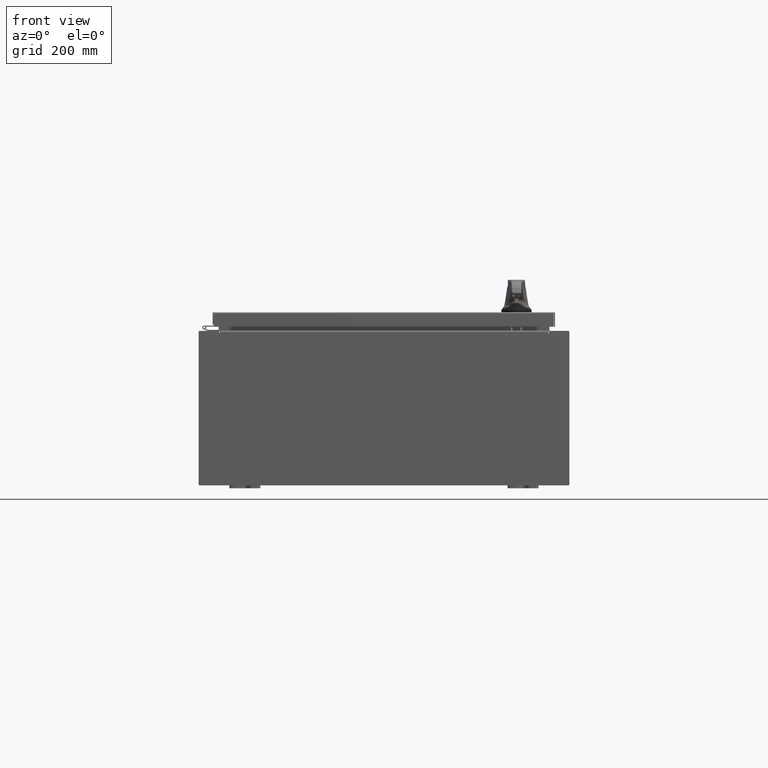
[diagram: clean part render]
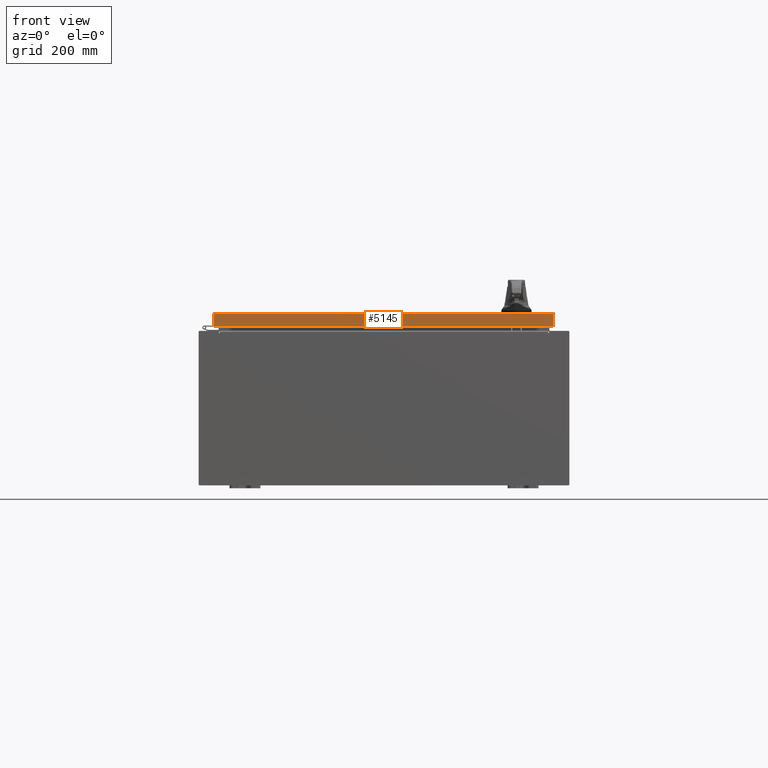
[diagram: same view with one face highlighted and labeled with its STEP entity id]
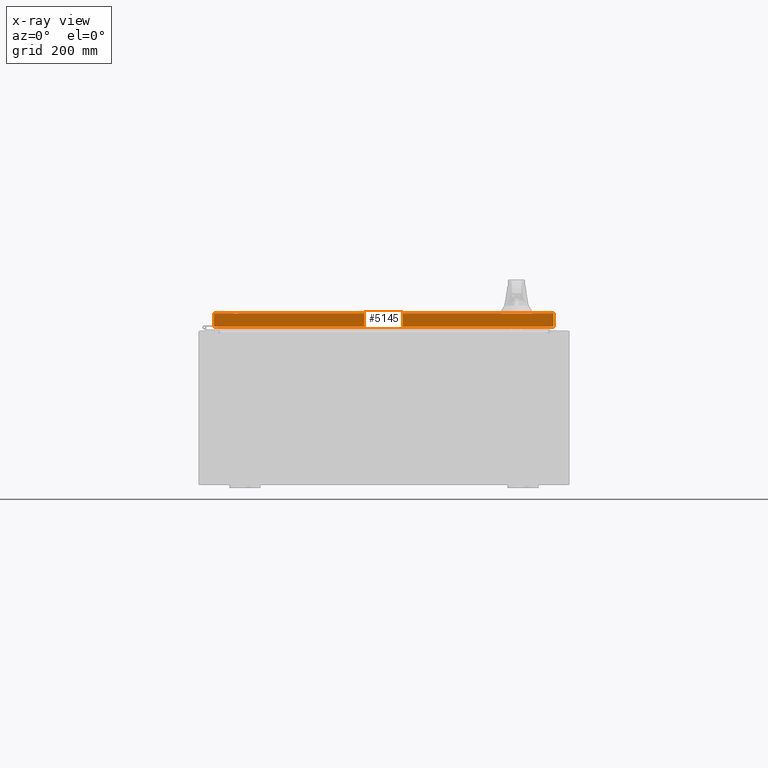
[diagram: x-ray of the same camera — body ghosted, the highlighted face saturated]
A machine part, front view. The second image highlights one B-rep face of the part: STEP entity #5145.
The next image is the same camera in x-ray: the body ghosted, the highlighted face saturated — about 0% of this face is hidden behind the body in this view.
In plain terms, the highlighted planar face has unit normal (-0, 1, -0).
Its self-contained STEP definition (entity closure, byte-faithful):
#308 = VERTEX_POINT ( 'NONE', #77193 ) ;
#3468 = CARTESIAN_POINT ( 'NONE',  ( -10.98915786437626900, -17.09399999999999800, 4.354999984715587200E-014 ) ) ;
#5145 = ADVANCED_FACE ( 'NONE', ( #108305 ), #26612, .F. ) ;
#13027 = DIRECTION ( 'NONE',  ( -3.122488847327593000E-031, 1.000000000000000000, -2.532419924601866100E-015 ) ) ;
#14921 = LINE ( 'NONE', #3468, #87943 ) ;
#16274 = LINE ( 'NONE', #116541, #117536 ) ;
#22689 = EDGE_LOOP ( 'NONE', ( #24752, #67475, #84300, #62879 ) ) ;
#24595 = VERTEX_POINT ( 'NONE', #38468 ) ;
#24752 = ORIENTED_EDGE ( 'NONE', *, *, #43842, .F. ) ;
#26612 = PLANE ( 'NONE',  #72526 ) ;
#27353 = LINE ( 'NONE', #61361, #72937 ) ;
#35202 = VERTEX_POINT ( 'NONE', #79389 ) ;
#38468 = CARTESIAN_POINT ( 'NONE',  ( -10.98915786437627200, -17.09399999999999800, -0.9376999999999970900 ) ) ;
#38877 = CARTESIAN_POINT ( 'NONE',  ( 5.337582435621786900E-030, -17.09399999999999800, 4.354999984715587200E-014 ) ) ;
#43842 = EDGE_CURVE ( 'NONE', #308, #58749, #27353, .T. ) ;
#58746 = EDGE_CURVE ( 'NONE', #35202, #24595, #83234, .T. ) ;
#58749 = VERTEX_POINT ( 'NONE', #87023 ) ;
#61361 = CARTESIAN_POINT ( 'NONE',  ( 11.07799999999999600, -17.09399999999999800, -0.08770000000000008300 ) ) ;
#62879 = ORIENTED_EDGE ( 'NONE', *, *, #70808, .F. ) ;
#65515 = DIRECTION ( 'NONE',  ( 0.0000000000000000000, 2.532419924601866100E-015, 1.000000000000000000 ) ) ;
#67475 = ORIENTED_EDGE ( 'NONE', *, *, #83489, .T. ) ;
#67893 = CARTESIAN_POINT ( 'NONE',  ( 11.07799999999999600, -17.09399999999999800, -0.9376999999999997600 ) ) ;
#70808 = EDGE_CURVE ( 'NONE', #58749, #35202, #16274, .T. ) ;
#70853 = DIRECTION ( 'NONE',  ( 1.000000000000000000, 3.122488847327593500E-031, -7.817847125977043000E-046 ) ) ;
#72526 = AXIS2_PLACEMENT_3D ( 'NONE', #38877, #13027, #65515 ) ;
#72937 = VECTOR ( 'NONE', #70853, 39.37007874015748100 ) ;
#77193 = CARTESIAN_POINT ( 'NONE',  ( -10.98915786437627200, -17.09399999999999800, -0.08770000000000008300 ) ) ;
#77243 = VECTOR ( 'NONE', #77445, 39.37007874015748100 ) ;
#77445 = DIRECTION ( 'NONE',  ( -1.000000000000000000, -0.0000000000000000000, 1.233005954894504400E-016 ) ) ;
#79389 = CARTESIAN_POINT ( 'NONE',  ( 10.98915786437626500, -17.09399999999999800, -0.9376999999999997600 ) ) ;
#80097 = DIRECTION ( 'NONE',  ( 0.0000000000000000000, -2.532419924601866100E-015, -1.000000000000000000 ) ) ;
#83234 = LINE ( 'NONE', #67893, #77243 ) ;
#83489 = EDGE_CURVE ( 'NONE', #308, #24595, #14921, .T. ) ;
#84300 = ORIENTED_EDGE ( 'NONE', *, *, #58746, .F. ) ;
#87023 = CARTESIAN_POINT ( 'NONE',  ( 10.98915786437626700, -17.09399999999999800, -0.08770000000000008300 ) ) ;
#87943 = VECTOR ( 'NONE', #80097, 39.37007874015748100 ) ;
#108305 = FACE_OUTER_BOUND ( 'NONE', #22689, .T. ) ;
#114905 = DIRECTION ( 'NONE',  ( -0.0000000000000000000, -2.532419924601866100E-015, -1.000000000000000000 ) ) ;
#116541 = CARTESIAN_POINT ( 'NONE',  ( 10.98915786437626500, -17.09399999999999800, -0.07469999999999980800 ) ) ;
#117536 = VECTOR ( 'NONE', #114905, 39.37007874015748100 ) ;